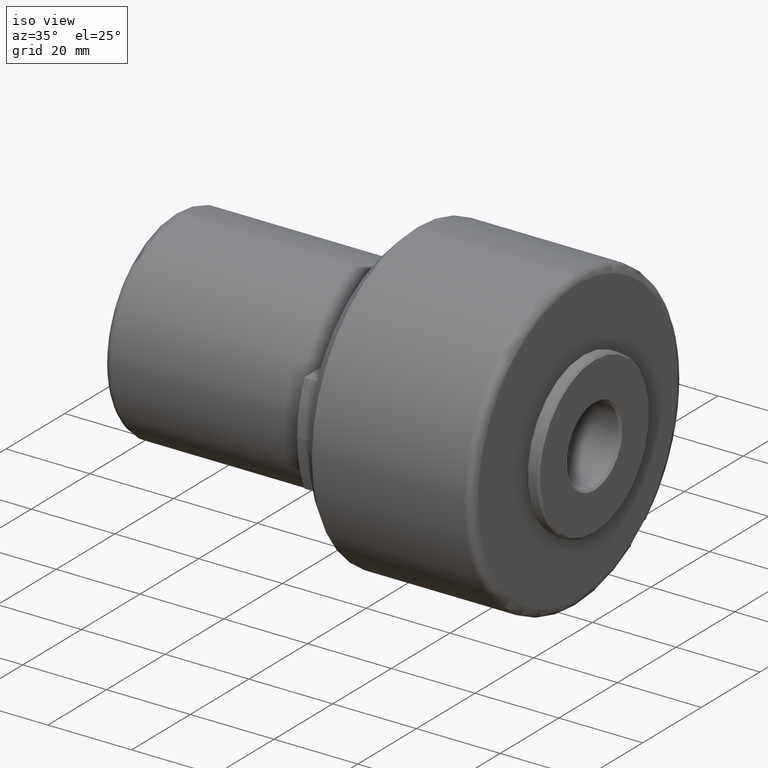
[diagram: clean part render]
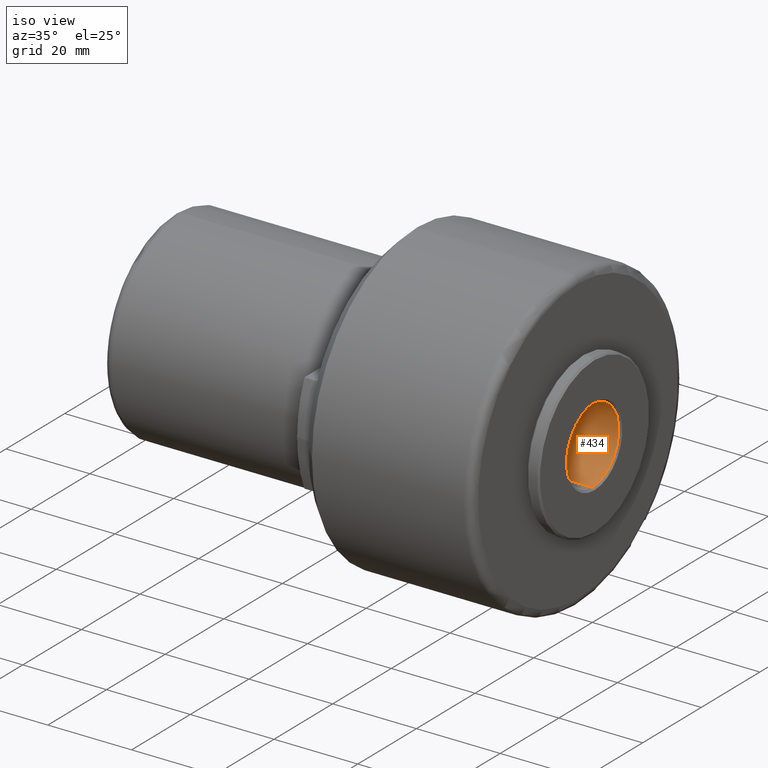
[diagram: same view with one face highlighted and labeled with its STEP entity id]
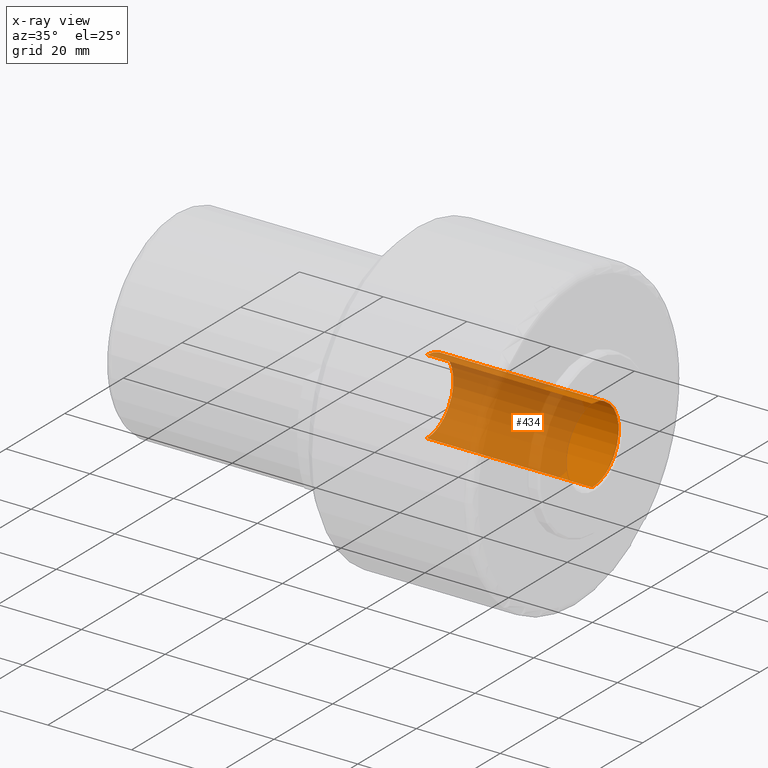
[diagram: x-ray of the same camera — body ghosted, the highlighted face saturated]
A machine part, iso view. The second image highlights one B-rep face of the part: STEP entity #434.
The next image is the same camera in x-ray: the body ghosted, the highlighted face saturated — about 76% of this face is hidden behind the body in this view.
In plain terms, the highlighted cylindrical surface (partial cylindrical patch) has radius 9 mm, axis along (-1, -0, -0).
Its self-contained STEP definition (entity closure, byte-faithful):
#37 = EDGE_CURVE ( 'NONE', #1055, #553, #1024, .T. ) ;
#132 = VECTOR ( 'NONE', #1351, 1000.000000000000000 ) ;
#178 = DIRECTION ( 'NONE',  ( 1.000000000000000000, -0.0000000000000000000, -0.0000000000000000000 ) ) ;
#276 = DIRECTION ( 'NONE',  ( 0.0000000000000000000, 0.0000000000000000000, 1.000000000000000000 ) ) ;
#277 = ORIENTED_EDGE ( 'NONE', *, *, #633, .F. ) ;
#325 = VECTOR ( 'NONE', #975, 1000.000000000000000 ) ;
#338 = CARTESIAN_POINT ( 'NONE',  ( 0.0000000000000000000, 0.0000000000000000000, 8.999999999999998200 ) ) ;
#369 = VERTEX_POINT ( 'NONE', #951 ) ;
#407 = CARTESIAN_POINT ( 'NONE',  ( 60.50000000000003600, 1.102182119232617300E-015, -8.999999999999994700 ) ) ;
#425 = LINE ( 'NONE', #338, #132 ) ;
#432 = CARTESIAN_POINT ( 'NONE',  ( 0.0000000000000000000, 0.0000000000000000000, 0.0000000000000000000 ) ) ;
#434 = ADVANCED_FACE ( 'NONE', ( #1378 ), #1096, .F. ) ;
#438 = AXIS2_PLACEMENT_3D ( 'NONE', #1182, #970, #1240 ) ;
#469 = ORIENTED_EDGE ( 'NONE', *, *, #37, .T. ) ;
#553 = VERTEX_POINT ( 'NONE', #407 ) ;
#582 = EDGE_CURVE ( 'NONE', #369, #953, #937, .T. ) ;
#598 = CARTESIAN_POINT ( 'NONE',  ( 100.0000000000000300, 0.0000000000000000000, 8.999999999999998200 ) ) ;
#627 = ORIENTED_EDGE ( 'NONE', *, *, #582, .T. ) ;
#633 = EDGE_CURVE ( 'NONE', #369, #553, #1189, .T. ) ;
#651 = CARTESIAN_POINT ( 'NONE',  ( 60.50000000000003600, 0.0000000000000000000, 8.999999999999994700 ) ) ;
#789 = EDGE_LOOP ( 'NONE', ( #277, #627, #1000, #469 ) ) ;
#826 = CARTESIAN_POINT ( 'NONE',  ( 100.0000000000000300, 0.0000000000000000000, 0.0000000000000000000 ) ) ;
#836 = DIRECTION ( 'NONE',  ( 0.0000000000000000000, 0.0000000000000000000, -1.000000000000000000 ) ) ;
#854 = AXIS2_PLACEMENT_3D ( 'NONE', #826, #178, #836 ) ;
#871 = CARTESIAN_POINT ( 'NONE',  ( 0.0000000000000000000, 1.102182119232617500E-015, -8.999999999999998200 ) ) ;
#937 = CIRCLE ( 'NONE', #854, 8.999999999999998200 ) ;
#951 = CARTESIAN_POINT ( 'NONE',  ( 100.0000000000000300, 1.102182119232617500E-015, -8.999999999999998200 ) ) ;
#953 = VERTEX_POINT ( 'NONE', #598 ) ;
#970 = DIRECTION ( 'NONE',  ( -1.000000000000000000, -0.0000000000000000000, -0.0000000000000000000 ) ) ;
#975 = DIRECTION ( 'NONE',  ( -1.000000000000000000, -0.0000000000000000000, -0.0000000000000000000 ) ) ;
#1000 = ORIENTED_EDGE ( 'NONE', *, *, #1211, .T. ) ;
#1024 = CIRCLE ( 'NONE', #438, 8.999999999999994700 ) ;
#1055 = VERTEX_POINT ( 'NONE', #651 ) ;
#1096 = CYLINDRICAL_SURFACE ( 'NONE', #1397, 8.999999999999998200 ) ;
#1182 = CARTESIAN_POINT ( 'NONE',  ( 60.50000000000003600, 0.0000000000000000000, 0.0000000000000000000 ) ) ;
#1189 = LINE ( 'NONE', #871, #325 ) ;
#1211 = EDGE_CURVE ( 'NONE', #953, #1055, #425, .T. ) ;
#1240 = DIRECTION ( 'NONE',  ( 0.0000000000000000000, 0.0000000000000000000, 1.000000000000000000 ) ) ;
#1255 = DIRECTION ( 'NONE',  ( -1.000000000000000000, -0.0000000000000000000, -0.0000000000000000000 ) ) ;
#1351 = DIRECTION ( 'NONE',  ( -1.000000000000000000, -0.0000000000000000000, -0.0000000000000000000 ) ) ;
#1378 = FACE_OUTER_BOUND ( 'NONE', #789, .T. ) ;
#1397 = AXIS2_PLACEMENT_3D ( 'NONE', #432, #1255, #276 ) ;